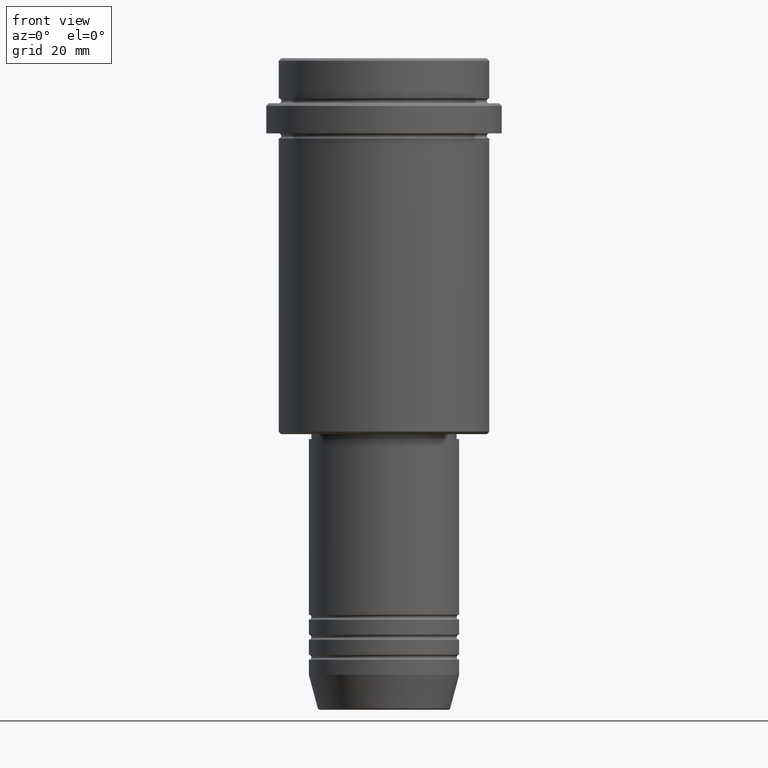
[diagram: clean part render]
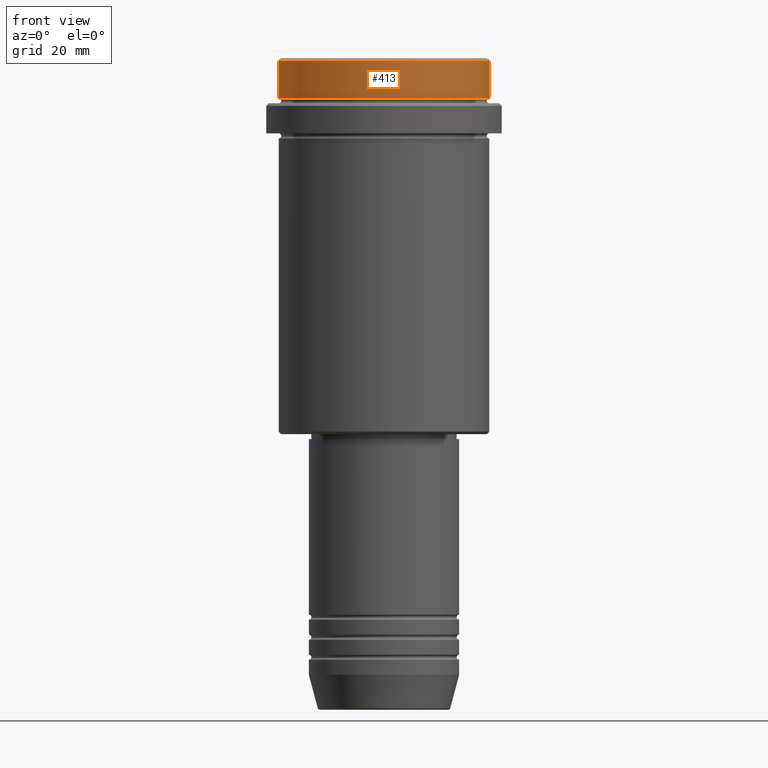
[diagram: same view with one face highlighted and labeled with its STEP entity id]
A machine part, front view. The second image highlights one B-rep face of the part: STEP entity #413.
In plain terms, the highlighted cylindrical surface (partial cylindrical patch) has radius 21 mm, axis along (-0, -0, 1).
Its self-contained STEP definition (entity closure, byte-faithful):
#18 = ORIENTED_EDGE ( 'NONE', *, *, #1241, .F. ) ;
#51 = CARTESIAN_POINT ( 'NONE',  ( -21.00000000000000000, 2.571758278209441661E-15, -0.5000000000000386358 ) ) ;
#86 = AXIS2_PLACEMENT_3D ( 'NONE', #127, #690, #1110 ) ;
#107 = CARTESIAN_POINT ( 'NONE',  ( 0.000000000000000000, 0.000000000000000000, -7.999999999999998224 ) ) ;
#127 = CARTESIAN_POINT ( 'NONE',  ( 0.000000000000000000, 0.000000000000000000, -0.5000000000000386358 ) ) ;
#145 = VERTEX_POINT ( 'NONE', #678 ) ;
#182 = CIRCLE ( 'NONE', #545, 21.00000000000000000 ) ;
#198 = AXIS2_PLACEMENT_3D ( 'NONE', #275, #714, #1344 ) ;
#275 = CARTESIAN_POINT ( 'NONE',  ( 0.000000000000000000, 0.000000000000000000, 0.000000000000000000 ) ) ;
#279 = VERTEX_POINT ( 'NONE', #51 ) ;
#312 = DIRECTION ( 'NONE',  ( -0.000000000000000000, -0.000000000000000000, 1.000000000000000000 ) ) ;
#362 = VECTOR ( 'NONE', #818, 1000.000000000000000 ) ;
#391 = EDGE_CURVE ( 'NONE', #441, #1029, #1041, .T. ) ;
#413 = ADVANCED_FACE ( 'NONE', ( #1252 ), #582, .T. ) ;
#441 = VERTEX_POINT ( 'NONE', #950 ) ;
#536 = DIRECTION ( 'NONE',  ( 1.000000000000000000, 0.000000000000000000, 0.000000000000000000 ) ) ;
#545 = AXIS2_PLACEMENT_3D ( 'NONE', #107, #312, #536 ) ;
#551 = EDGE_LOOP ( 'NONE', ( #18, #1171, #1069, #1165 ) ) ;
#582 = CYLINDRICAL_SURFACE ( 'NONE', #198, 21.00000000000000000 ) ;
#678 = CARTESIAN_POINT ( 'NONE',  ( -21.00000000000000000, 2.571758278209441661E-15, -7.999999999999998224 ) ) ;
#690 = DIRECTION ( 'NONE',  ( 0.000000000000000000, 0.000000000000000000, -1.000000000000000000 ) ) ;
#698 = CARTESIAN_POINT ( 'NONE',  ( 21.00000000000000000, 0.000000000000000000, -0.5000000000000386358 ) ) ;
#714 = DIRECTION ( 'NONE',  ( -0.000000000000000000, -0.000000000000000000, 1.000000000000000000 ) ) ;
#731 = LINE ( 'NONE', #1370, #780 ) ;
#780 = VECTOR ( 'NONE', #1059, 1000.000000000000000 ) ;
#818 = DIRECTION ( 'NONE',  ( -0.000000000000000000, -0.000000000000000000, 1.000000000000000000 ) ) ;
#941 = CIRCLE ( 'NONE', #86, 21.00000000000000000 ) ;
#950 = CARTESIAN_POINT ( 'NONE',  ( 21.00000000000000000, 0.000000000000000000, -7.999999999999998224 ) ) ;
#1029 = VERTEX_POINT ( 'NONE', #698 ) ;
#1041 = LINE ( 'NONE', #1357, #362 ) ;
#1059 = DIRECTION ( 'NONE',  ( -0.000000000000000000, -0.000000000000000000, 1.000000000000000000 ) ) ;
#1067 = EDGE_CURVE ( 'NONE', #1029, #279, #941, .T. ) ;
#1069 = ORIENTED_EDGE ( 'NONE', *, *, #391, .T. ) ;
#1110 = DIRECTION ( 'NONE',  ( 1.000000000000000000, 0.000000000000000000, 0.000000000000000000 ) ) ;
#1165 = ORIENTED_EDGE ( 'NONE', *, *, #1067, .T. ) ;
#1171 = ORIENTED_EDGE ( 'NONE', *, *, #1333, .T. ) ;
#1241 = EDGE_CURVE ( 'NONE', #145, #279, #731, .T. ) ;
#1252 = FACE_OUTER_BOUND ( 'NONE', #551, .T. ) ;
#1333 = EDGE_CURVE ( 'NONE', #145, #441, #182, .T. ) ;
#1344 = DIRECTION ( 'NONE',  ( 1.000000000000000000, 0.000000000000000000, 0.000000000000000000 ) ) ;
#1357 = CARTESIAN_POINT ( 'NONE',  ( 21.00000000000000000, 0.000000000000000000, 0.000000000000000000 ) ) ;
#1370 = CARTESIAN_POINT ( 'NONE',  ( -21.00000000000000000, 2.571758278209441661E-15, 0.000000000000000000 ) ) ;